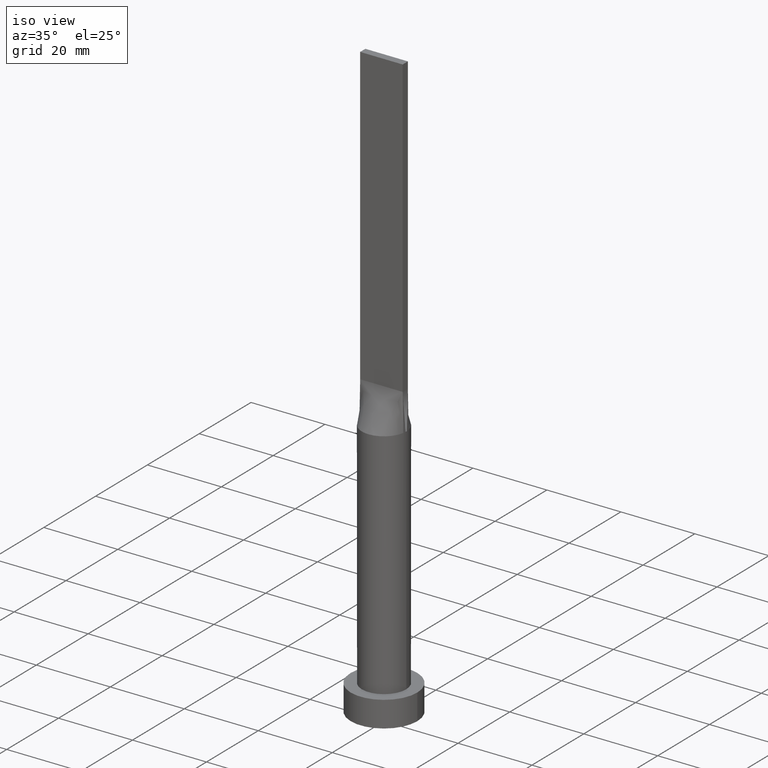
[diagram: clean part render]
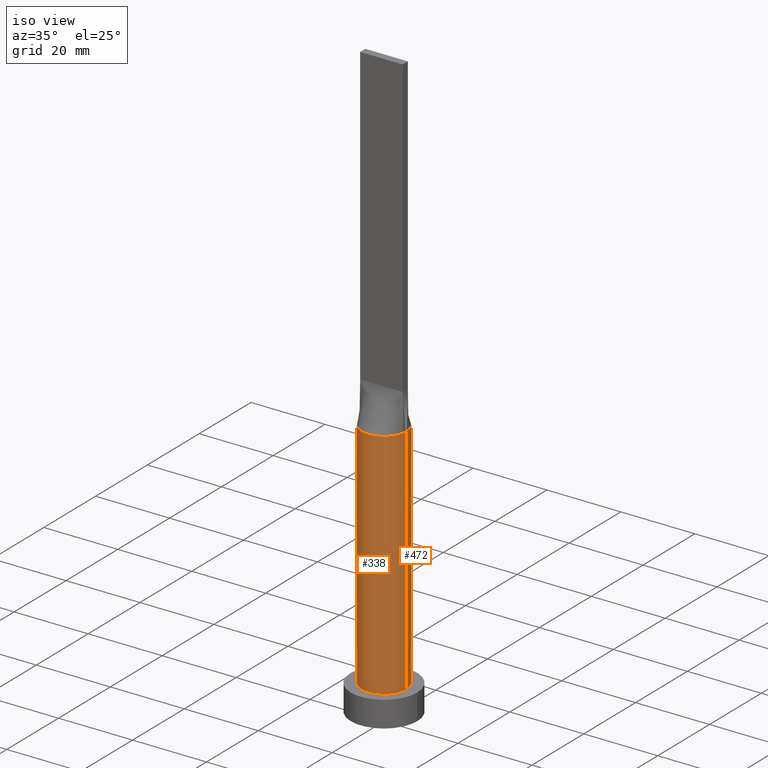
[diagram: same view with one multi-face feature highlighted, each face labeled with its STEP entity id]
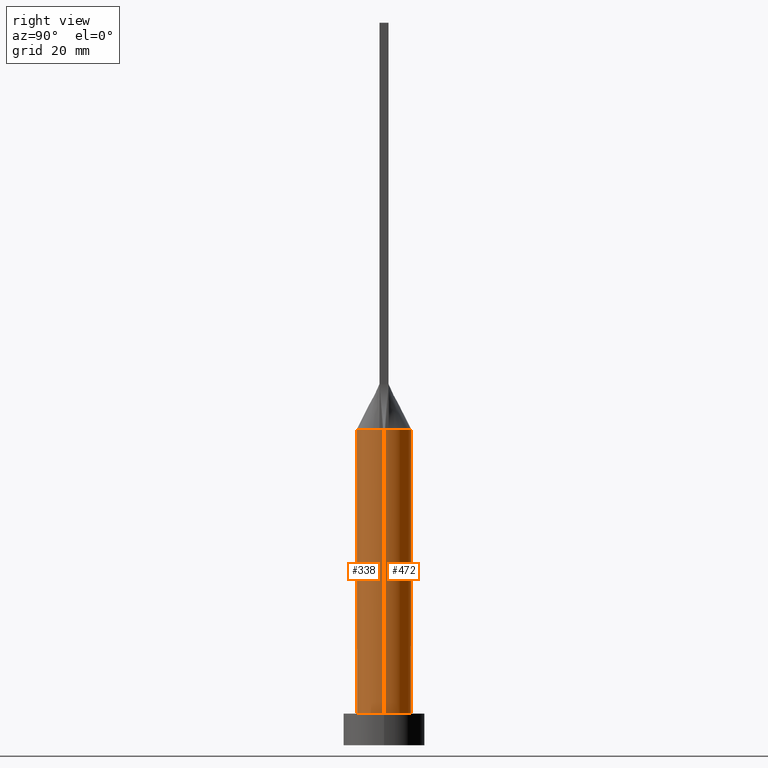
[diagram: same view with one multi-face feature highlighted, each face labeled with its STEP entity id]
A machine part, iso view. The highlighted faces form ONE feature: a constant-radius fillet chain: 2 tangent blend faces with common blend radius 6 mm. The faces share edges in the B-rep.
A second angle (right view) of the same feature is appended — it is thin or edge-on in the first view.
Their STEP definitions:
[1] entity #472 (Cylinder):
#14 = CARTESIAN_POINT ( 'NONE',  ( 0.000000000000000000, 0.000000000000000000, 7.000000000000000000 ) ) ;
#15 = CIRCLE ( 'NONE', #161, 6.000000000000000888 ) ;
#22 = DIRECTION ( 'NONE',  ( 0.000000000000000000, 0.000000000000000000, 1.000000000000000000 ) ) ;
#35 = CARTESIAN_POINT ( 'NONE',  ( -5.155904004142094266, 3.127085030567958501, 70.00000000000000000 ) ) ;
#39 = CARTESIAN_POINT ( 'NONE',  ( 0.4205485882577719159, 6.000000000000000000, 70.00000000000000000 ) ) ;
#46 = EDGE_CURVE ( 'NONE', #261, #253, #15, .T. ) ;
#68 = CARTESIAN_POINT ( 'NONE',  ( 4.788055724916948641, 3.685825800347680925, 70.00000000000000000 ) ) ;
#70 = VERTEX_POINT ( 'NONE', #501 ) ;
#71 = CARTESIAN_POINT ( 'NONE',  ( -5.911281259919041631, 1.028048927730119244, 70.00000000000000000 ) ) ;
#75 = CARTESIAN_POINT ( 'NONE',  ( -5.826866859193279069, 1.513368149424918263, 70.00000000000001421 ) ) ;
#86 = CARTESIAN_POINT ( 'NONE',  ( -2.047812955694715775, 5.654083712646525761, 70.00000000000001421 ) ) ;
#104 = EDGE_CURVE ( 'NONE', #218, #594, #364, .T. ) ;
#111 = CARTESIAN_POINT ( 'NONE',  ( 5.155904004142093378, 3.127085030567957169, 70.00000000000001421 ) ) ;
#115 = CARTESIAN_POINT ( 'NONE',  ( -1.654707822076785906, 5.782296865845955480, 70.00000000000001421 ) ) ;
#118 = DIRECTION ( 'NONE',  ( -0.000000000000000000, -0.000000000000000000, -1.000000000000000000 ) ) ;
#119 = CARTESIAN_POINT ( 'NONE',  ( -5.999671961706731338, 1.720595681592925272E-14, 70.00000000000000000 ) ) ;
#126 = CARTESIAN_POINT ( 'NONE',  ( 2.047812955694715331, 5.654083712646525761, 70.00000000000000000 ) ) ;
#137 = CARTESIAN_POINT ( 'NONE',  ( -6.000000000000000888, 0.000000000000000000, 7.000000000000000000 ) ) ;
#145 = AXIS2_PLACEMENT_3D ( 'NONE', #506, #593, #395 ) ;
#153 = CARTESIAN_POINT ( 'NONE',  ( 6.000000000000000888, 7.347880794884120722E-16, 7.000000000000000000 ) ) ;
#157 = CARTESIAN_POINT ( 'NONE',  ( 5.674157483178163375, 2.041064365575945061, 70.00000000000000000 ) ) ;
#161 = AXIS2_PLACEMENT_3D ( 'NONE', #14, #22, #547 ) ;
#168 = VERTEX_POINT ( 'NONE', #119 ) ;
#203 = ORIENTED_EDGE ( 'NONE', *, *, #422, .T. ) ;
#207 = CARTESIAN_POINT ( 'NONE',  ( 3.755743307515265084, 4.694751915224760097, 69.99999999999998579 ) ) ;
#212 = VECTOR ( 'NONE', #118, 1000.000000000000000 ) ;
#218 = VERTEX_POINT ( 'NONE', #279 ) ;
#223 = DIRECTION ( 'NONE',  ( 1.000000000000000000, 0.000000000000000000, 0.000000000000000000 ) ) ;
#227 = DIRECTION ( 'NONE',  ( -1.000000000000000000, 0.000000000000000000, 0.000000000000000000 ) ) ;
#245 = ORIENTED_EDGE ( 'NONE', *, *, #46, .T. ) ;
#253 = VERTEX_POINT ( 'NONE', #137 ) ;
#254 = CARTESIAN_POINT ( 'NONE',  ( 4.038230363771782905, 4.452009983475585742, 70.00000000000000000 ) ) ;
#261 = VERTEX_POINT ( 'NONE', #153 ) ;
#269 = CARTESIAN_POINT ( 'NONE',  ( 0.8409966403356972098, 5.955311887059998810, 70.00000000000001421 ) ) ;
#279 = CARTESIAN_POINT ( 'NONE',  ( 5.999671961706731338, 1.511234776062676333E-15, 70.00000000000000000 ) ) ;
#304 = CARTESIAN_POINT ( 'NONE',  ( -4.038230363771780240, 4.452009983475584853, 69.99999999999998579 ) ) ;
#308 = CARTESIAN_POINT ( 'NONE',  ( -3.755743307515264195, 4.694751915224762762, 69.99999999999998579 ) ) ;
#316 = CARTESIAN_POINT ( 'NONE',  ( -6.000000000000000888, 0.000000000000000000, 70.00000000000000000 ) ) ;
#320 = CARTESIAN_POINT ( 'NONE',  ( 1.654707822076785684, 5.782296865845954592, 70.00000000000002842 ) ) ;
#331 = CARTESIAN_POINT ( 'NONE',  ( 3.129188161608685181, 5.133661927581551154, 69.99999999999998579 ) ) ;
#351 = AXIS2_PLACEMENT_3D ( 'NONE', #416, #408, #227 ) ;
#359 = LINE ( 'NONE', #461, #430 ) ;
#361 = EDGE_LOOP ( 'NONE', ( #552, #203, #245, #498, #460, #564 ) ) ;
#364 = CIRCLE ( 'NONE', #145, 6.000000000000000888 ) ;
#394 = EDGE_CURVE ( 'NONE', #594, #70, #399, .T. ) ;
#395 = DIRECTION ( 'NONE',  ( 1.000000000000000000, 0.000000000000000000, 0.000000000000000000 ) ) ;
#399 = B_SPLINE_CURVE_WITH_KNOTS ( 'NONE', 3,
 ( #591, #478, #157, #111, #68, #254, #207, #331, #528, #126, #320, #269, #39, #519, #516, #115, #86, #561, #553, #308, #304, #508, #35, #603, #75, #71 ),
 .UNSPECIFIED., .F., .F.,
 ( 4, 2, 2, 2, 2, 2, 2, 2, 2, 2, 2, 2, 4 ),
 ( 0.000000000000000000, 0.1250000000000000000, 0.2500000000000000000, 0.3125000000000000000, 0.3750000000000000000, 0.4375000000000000000, 0.5000000000000000000, 0.5625000000000000000, 0.6250000000000000000, 0.6875000000000000000, 0.7500000000000000000, 0.8750000000000000000, 1.000000000000000000 ),
 .UNSPECIFIED. ) ;
#408 = DIRECTION ( 'NONE',  ( -0.000000000000000000, -0.000000000000000000, -1.000000000000000000 ) ) ;
#416 = CARTESIAN_POINT ( 'NONE',  ( 0.000000000000000000, 0.000000000000000000, 70.00000000000000000 ) ) ;
#422 = EDGE_CURVE ( 'NONE', #218, #261, #359, .T. ) ;
#424 = DIRECTION ( 'NONE',  ( -0.000000000000000000, -0.000000000000000000, -1.000000000000000000 ) ) ;
#428 = EDGE_CURVE ( 'NONE', #168, #253, #469, .T. ) ;
#430 = VECTOR ( 'NONE', #424, 1000.000000000000000 ) ;
#442 = EDGE_CURVE ( 'NONE', #70, #168, #570, .T. ) ;
#454 = DIRECTION ( 'NONE',  ( 0.000000000000000000, 0.000000000000000000, 1.000000000000000000 ) ) ;
#458 = FACE_OUTER_BOUND ( 'NONE', #361, .T. ) ;
#460 = ORIENTED_EDGE ( 'NONE', *, *, #442, .F. ) ;
#461 = CARTESIAN_POINT ( 'NONE',  ( 6.000000000000000888, 7.347880794884120722E-16, 70.00000000000000000 ) ) ;
#469 = LINE ( 'NONE', #316, #212 ) ;
#472 = ADVANCED_FACE ( 'NONE', ( #458 ), #556, .T. ) ;
#478 = CARTESIAN_POINT ( 'NONE',  ( 5.826866859193277293, 1.513368149424917153, 70.00000000000001421 ) ) ;
#498 = ORIENTED_EDGE ( 'NONE', *, *, #428, .F. ) ;
#501 = CARTESIAN_POINT ( 'NONE',  ( -5.911281259919041631, 1.028048927730119244, 70.00000000000000000 ) ) ;
#506 = CARTESIAN_POINT ( 'NONE',  ( 0.000000000000000000, 0.000000000000000000, 70.00000000000000000 ) ) ;
#508 = CARTESIAN_POINT ( 'NONE',  ( -4.788055724916949529, 3.685825800347683590, 70.00000000000000000 ) ) ;
#516 = CARTESIAN_POINT ( 'NONE',  ( -0.8409966403356965436, 5.955311887059998810, 70.00000000000002842 ) ) ;
#519 = CARTESIAN_POINT ( 'NONE',  ( -0.4205485882577720824, 6.000000000000000888, 69.99999999999998579 ) ) ;
#528 = CARTESIAN_POINT ( 'NONE',  ( 2.785082292717041330, 5.329682650394847343, 70.00000000000001421 ) ) ;
#535 = CARTESIAN_POINT ( 'NONE',  ( 5.911270528918048939, 1.028047048507483519, 70.00000000000000000 ) ) ;
#547 = DIRECTION ( 'NONE',  ( 1.000000000000000000, 0.000000000000000000, 0.000000000000000000 ) ) ;
#552 = ORIENTED_EDGE ( 'NONE', *, *, #104, .F. ) ;
#553 = CARTESIAN_POINT ( 'NONE',  ( -3.129188161608685181, 5.133661927581553819, 70.00000000000001421 ) ) ;
#556 = CYLINDRICAL_SURFACE ( 'NONE', #351, 6.000000000000000888 ) ;
#561 = CARTESIAN_POINT ( 'NONE',  ( -2.785082292717042218, 5.329682650394847343, 70.00000000000000000 ) ) ;
#564 = ORIENTED_EDGE ( 'NONE', *, *, #394, .F. ) ;
#570 = CIRCLE ( 'NONE', #596, 6.000000000000000888 ) ;
#591 = CARTESIAN_POINT ( 'NONE',  ( 5.911270528918048939, 1.028047048507483519, 70.00000000000000000 ) ) ;
#593 = DIRECTION ( 'NONE',  ( 0.000000000000000000, 0.000000000000000000, 1.000000000000000000 ) ) ;
#594 = VERTEX_POINT ( 'NONE', #535 ) ;
#596 = AXIS2_PLACEMENT_3D ( 'NONE', #606, #454, #223 ) ;
#603 = CARTESIAN_POINT ( 'NONE',  ( -5.674157483178163375, 2.041064365575947726, 70.00000000000000000 ) ) ;
#606 = CARTESIAN_POINT ( 'NONE',  ( 0.000000000000000000, 0.000000000000000000, 70.00000000000000000 ) ) ;
[2] entity #338 (Cylinder):
#13 = AXIS2_PLACEMENT_3D ( 'NONE', #100, #343, #287 ) ;
#55 = EDGE_CURVE ( 'NONE', #253, #261, #134, .T. ) ;
#76 = CARTESIAN_POINT ( 'NONE',  ( 0.000000000000000000, 0.000000000000000000, 7.000000000000000000 ) ) ;
#98 = CARTESIAN_POINT ( 'NONE',  ( 0.000000000000000000, 0.000000000000000000, 70.00000000000000000 ) ) ;
#100 = CARTESIAN_POINT ( 'NONE',  ( 0.000000000000000000, 0.000000000000000000, 70.00000000000000000 ) ) ;
#112 = AXIS2_PLACEMENT_3D ( 'NONE', #481, #237, #500 ) ;
#118 = DIRECTION ( 'NONE',  ( -0.000000000000000000, -0.000000000000000000, -1.000000000000000000 ) ) ;
#119 = CARTESIAN_POINT ( 'NONE',  ( -5.999671961706731338, 1.720595681592925272E-14, 70.00000000000000000 ) ) ;
#125 = ORIENTED_EDGE ( 'NONE', *, *, #55, .T. ) ;
#134 = CIRCLE ( 'NONE', #487, 6.000000000000000888 ) ;
#137 = CARTESIAN_POINT ( 'NONE',  ( -6.000000000000000888, 0.000000000000000000, 7.000000000000000000 ) ) ;
#153 = CARTESIAN_POINT ( 'NONE',  ( 6.000000000000000888, 7.347880794884120722E-16, 7.000000000000000000 ) ) ;
#156 = ORIENTED_EDGE ( 'NONE', *, *, #330, .F. ) ;
#165 = ORIENTED_EDGE ( 'NONE', *, *, #428, .T. ) ;
#168 = VERTEX_POINT ( 'NONE', #119 ) ;
#169 = CARTESIAN_POINT ( 'NONE',  ( 5.911281968884419591, -1.028049053400068802, 70.00000000000000000 ) ) ;
#195 = CARTESIAN_POINT ( 'NONE',  ( 0.000000000000000000, 0.000000000000000000, 70.00000000000000000 ) ) ;
#201 = DIRECTION ( 'NONE',  ( 1.000000000000000000, 0.000000000000000000, 0.000000000000000000 ) ) ;
#212 = VECTOR ( 'NONE', #118, 1000.000000000000000 ) ;
#218 = VERTEX_POINT ( 'NONE', #279 ) ;
#222 = EDGE_LOOP ( 'NONE', ( #457, #605, #156, #401, #165, #125 ) ) ;
#237 = DIRECTION ( 'NONE',  ( 0.000000000000000000, 0.000000000000000000, 1.000000000000000000 ) ) ;
#253 = VERTEX_POINT ( 'NONE', #137 ) ;
#261 = VERTEX_POINT ( 'NONE', #153 ) ;
#263 = EDGE_CURVE ( 'NONE', #397, #218, #477, .T. ) ;
#279 = CARTESIAN_POINT ( 'NONE',  ( 5.999671961706731338, 1.511234776062676333E-15, 70.00000000000000000 ) ) ;
#287 = DIRECTION ( 'NONE',  ( -1.000000000000000000, 0.000000000000000000, 0.000000000000000000 ) ) ;
#295 = DIRECTION ( 'NONE',  ( 1.000000000000000000, 0.000000000000000000, 0.000000000000000000 ) ) ;
#298 = CIRCLE ( 'NONE', #363, 6.000000000000000888 ) ;
#316 = CARTESIAN_POINT ( 'NONE',  ( -6.000000000000000888, 0.000000000000000000, 70.00000000000000000 ) ) ;
#330 = EDGE_CURVE ( 'NONE', #347, #397, #333, .T. ) ;
#333 = CIRCLE ( 'NONE', #419, 6.000000000000000888 ) ;
#338 = ADVANCED_FACE ( 'NONE', ( #398 ), #581, .T. ) ;
#343 = DIRECTION ( 'NONE',  ( -0.000000000000000000, -0.000000000000000000, -1.000000000000000000 ) ) ;
#347 = VERTEX_POINT ( 'NONE', #484 ) ;
#355 = EDGE_CURVE ( 'NONE', #168, #347, #298, .T. ) ;
#359 = LINE ( 'NONE', #461, #430 ) ;
#363 = AXIS2_PLACEMENT_3D ( 'NONE', #195, #386, #295 ) ;
#386 = DIRECTION ( 'NONE',  ( 0.000000000000000000, 0.000000000000000000, 1.000000000000000000 ) ) ;
#397 = VERTEX_POINT ( 'NONE', #169 ) ;
#398 = FACE_OUTER_BOUND ( 'NONE', #222, .T. ) ;
#401 = ORIENTED_EDGE ( 'NONE', *, *, #355, .F. ) ;
#419 = AXIS2_PLACEMENT_3D ( 'NONE', #98, #595, #439 ) ;
#422 = EDGE_CURVE ( 'NONE', #218, #261, #359, .T. ) ;
#424 = DIRECTION ( 'NONE',  ( -0.000000000000000000, -0.000000000000000000, -1.000000000000000000 ) ) ;
#428 = EDGE_CURVE ( 'NONE', #168, #253, #469, .T. ) ;
#430 = VECTOR ( 'NONE', #424, 1000.000000000000000 ) ;
#439 = DIRECTION ( 'NONE',  ( 1.000000000000000000, 0.000000000000000000, 0.000000000000000000 ) ) ;
#457 = ORIENTED_EDGE ( 'NONE', *, *, #422, .F. ) ;
#461 = CARTESIAN_POINT ( 'NONE',  ( 6.000000000000000888, 7.347880794884120722E-16, 70.00000000000000000 ) ) ;
#469 = LINE ( 'NONE', #316, #212 ) ;
#477 = CIRCLE ( 'NONE', #112, 6.000000000000000888 ) ;
#481 = CARTESIAN_POINT ( 'NONE',  ( 0.000000000000000000, 0.000000000000000000, 70.00000000000000000 ) ) ;
#484 = CARTESIAN_POINT ( 'NONE',  ( -5.911272568678778150, -1.028047416901946898, 70.00000000000000000 ) ) ;
#487 = AXIS2_PLACEMENT_3D ( 'NONE', #76, #542, #201 ) ;
#500 = DIRECTION ( 'NONE',  ( 1.000000000000000000, -1.332267629550187849E-14, 0.000000000000000000 ) ) ;
#542 = DIRECTION ( 'NONE',  ( 0.000000000000000000, 0.000000000000000000, 1.000000000000000000 ) ) ;
#581 = CYLINDRICAL_SURFACE ( 'NONE', #13, 6.000000000000000888 ) ;
#595 = DIRECTION ( 'NONE',  ( 0.000000000000000000, 0.000000000000000000, 1.000000000000000000 ) ) ;
#605 = ORIENTED_EDGE ( 'NONE', *, *, #263, .F. ) ;